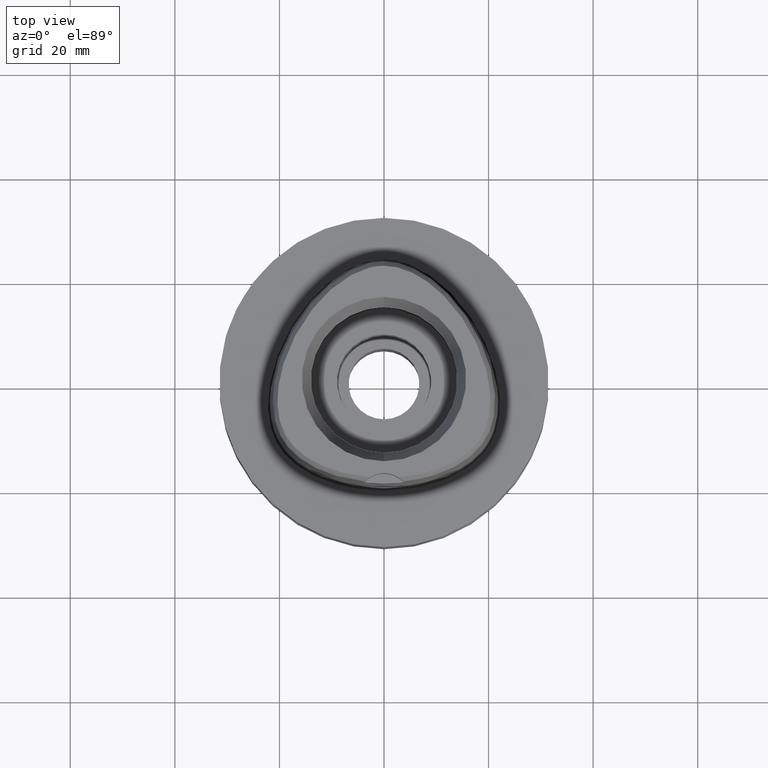
[diagram: clean part render]
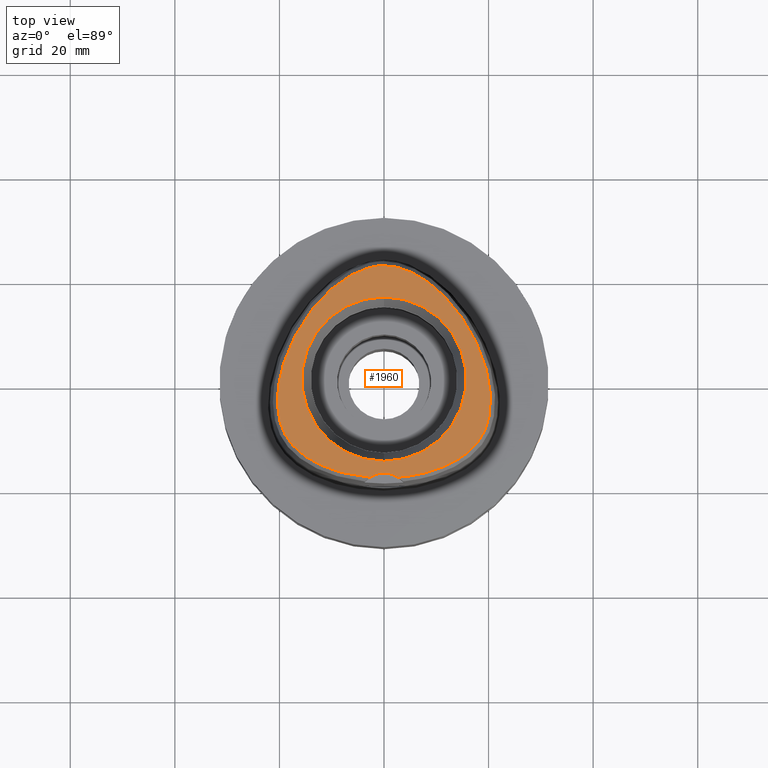
[diagram: same view with one face highlighted and labeled with its STEP entity id]
A machine part, top view. The second image highlights one B-rep face of the part: STEP entity #1960.
In plain terms, the highlighted planar face has unit normal (0, 0, 1).
Its self-contained STEP definition (entity closure, byte-faithful):
#17=CARTESIAN_POINT('',(0.E0,-2.3E1,3.8E1));
#18=DIRECTION('',(0.E0,0.E0,1.E0));
#19=DIRECTION('',(5.364574965210E-1,8.439273395420E-1,0.E0));
#20=AXIS2_PLACEMENT_3D('',#17,#18,#19);
#26=CARTESIAN_POINT('',(0.E0,-2.3E1,3.8E1));
#27=DIRECTION('',(0.E0,0.E0,1.E0));
#28=DIRECTION('',(0.E0,1.E0,0.E0));
#29=AXIS2_PLACEMENT_3D('',#26,#27,#28);
#34=CARTESIAN_POINT('',(-2.682279906005E0,-1.878035848610E1,3.8E1));
#35=CARTESIAN_POINT('',(-3.542684252615E0,-1.871149542856E1,3.8E1));
#36=CARTESIAN_POINT('',(-5.170900762050E0,-1.851498175062E1,3.8E1));
#37=CARTESIAN_POINT('',(-7.384743339320E0,-1.807555510833E1,3.8E1));
#38=CARTESIAN_POINT('',(-9.236301783595E0,-1.756641540527E1,3.8E1));
#39=CARTESIAN_POINT('',(-1.085956236626E1,-1.700080306317E1,3.8E1));
#40=CARTESIAN_POINT('',(-1.233269681922E1,-1.636948330550E1,3.8E1));
#41=CARTESIAN_POINT('',(-1.367390539554E1,-1.567422530037E1,3.8E1));
#42=CARTESIAN_POINT('',(-1.489775850368E1,-1.491299728992E1,3.8E1));
#43=CARTESIAN_POINT('',(-1.601551275396E1,-1.407582522433E1,3.8E1));
#44=CARTESIAN_POINT('',(-1.697700266821E1,-1.320310694529E1,3.8E1));
#45=CARTESIAN_POINT('',(-1.777861122549E1,-1.231957036430E1,3.8E1));
#46=CARTESIAN_POINT('',(-1.843904442737E1,-1.142943643228E1,3.8E1));
#47=CARTESIAN_POINT('',(-1.898429820691E1,-1.051501724725E1,3.8E1));
#48=CARTESIAN_POINT('',(-1.944540071623E1,-9.525088501950E0,3.8E1));
#49=CARTESIAN_POINT('',(-1.983058892854E1,-8.426345650525E0,3.8E1));
#50=CARTESIAN_POINT('',(-2.013196699494E1,-7.195847311692E0,3.8E1));
#51=CARTESIAN_POINT('',(-2.033103332303E1,-5.827338183120E0,3.8E1));
#52=CARTESIAN_POINT('',(-2.040988868810E1,-4.395969024624E0,3.8E1));
#53=CARTESIAN_POINT('',(-2.037268694022E1,-2.907760486794E0,3.8E1));
#54=CARTESIAN_POINT('',(-2.021598093571E1,-1.338764890676E0,3.8E1));
#55=CARTESIAN_POINT('',(-1.993237140046E1,3.152115768366E-1,3.8E1));
#56=CARTESIAN_POINT('',(-1.949507058968E1,2.123537742689E0,3.8E1));
#57=CARTESIAN_POINT('',(-1.884170218999E1,4.181892070023E0,3.8E1));
#58=CARTESIAN_POINT('',(-1.792369696252E1,6.456800824738E0,3.8E1));
#59=CARTESIAN_POINT('',(-1.678338887765E1,8.749921771021E0,3.8E1));
#60=CARTESIAN_POINT('',(-1.547466348741E1,1.094681242026E1,3.8E1));
#61=CARTESIAN_POINT('',(-1.400561577317E1,1.303181560872E1,3.8E1));
#62=CARTESIAN_POINT('',(-1.249470891774E1,1.485421335933E1,3.8E1));
#63=CARTESIAN_POINT('',(-1.108622198193E1,1.631794580162E1,3.8E1));
#64=CARTESIAN_POINT('',(-9.765674941770E0,1.751518803746E1,3.8E1));
#65=CARTESIAN_POINT('',(-8.483038826251E0,1.852764142548E1,3.8E1));
#66=CARTESIAN_POINT('',(-7.208933178398E0,1.939336301656E1,3.8E1));
#67=CARTESIAN_POINT('',(-5.932895999780E0,2.012450270830E1,3.8E1));
#68=CARTESIAN_POINT('',(-4.655029159068E0,2.072139129841E1,3.8E1));
#69=CARTESIAN_POINT('',(-3.398657390787E0,2.117407849146E1,3.8E1));
#70=CARTESIAN_POINT('',(-2.205929336932E0,2.147805146315E1,3.8E1));
#71=CARTESIAN_POINT('',(-1.082079509466E0,2.165007100264E1,3.8E1));
#72=CARTESIAN_POINT('',(-3.556136655468E-1,2.168728795389E1,3.8E1));
#73=CARTESIAN_POINT('',(-3.470663397188E-11,2.168728795390E1,3.8E1));
#78=CARTESIAN_POINT('',(-3.470663397188E-11,2.168728795390E1,3.8E1));
#79=CARTESIAN_POINT('',(3.550111493189E-1,2.168728795390E1,3.8E1));
#80=CARTESIAN_POINT('',(1.080412194031E0,2.165027697941E1,3.8E1));
#81=CARTESIAN_POINT('',(2.205261383070E0,2.147811165217E1,3.8E1));
#82=CARTESIAN_POINT('',(3.395061354145E0,2.117526292444E1,3.8E1));
#83=CARTESIAN_POINT('',(4.660657625334E0,2.071950309194E1,3.8E1));
#84=CARTESIAN_POINT('',(5.945693680790E0,2.011772579885E1,3.8E1));
#85=CARTESIAN_POINT('',(7.213321398094E0,1.939050300571E1,3.8E1));
#86=CARTESIAN_POINT('',(8.492008870674E0,1.852122455499E1,3.8E1));
#87=CARTESIAN_POINT('',(9.773419634896E0,1.750842668507E1,3.8E1));
#88=CARTESIAN_POINT('',(1.108889118267E1,1.631521441504E1,3.8E1));
#89=CARTESIAN_POINT('',(1.249902606281E1,1.484972084761E1,3.8E1));
#90=CARTESIAN_POINT('',(1.401406822999E1,1.302057529967E1,3.8E1));
#91=CARTESIAN_POINT('',(1.547628277862E1,1.094413290308E1,3.8E1));
#92=CARTESIAN_POINT('',(1.678880293224E1,8.740496658569E0,3.8E1));
#93=CARTESIAN_POINT('',(1.792874015042E1,6.445264108876E0,3.8E1));
#94=CARTESIAN_POINT('',(1.884131802771E1,4.181524983986E0,3.8E1));
#95=CARTESIAN_POINT('',(1.948996768603E1,2.140948145674E0,3.8E1));
#96=CARTESIAN_POINT('',(1.992980756798E1,3.287071680138E-1,3.8E1));
#97=CARTESIAN_POINT('',(2.021520594809E1,-1.332801993494E0,3.8E1));
#98=CARTESIAN_POINT('',(2.037226090686E1,-2.900626554198E0,3.8E1));
#99=CARTESIAN_POINT('',(2.041003910769E1,-4.393793915992E0,3.8E1));
#100=CARTESIAN_POINT('',(2.033111580438E1,-5.824959066339E0,3.8E1));
#101=CARTESIAN_POINT('',(2.013346253360E1,-7.187554328402E0,3.8E1));
#102=CARTESIAN_POINT('',(1.983257474133E1,-8.420100027078E0,3.8E1));
#103=CARTESIAN_POINT('',(1.944668054625E1,-9.521959439703E0,3.8E1));
#104=CARTESIAN_POINT('',(1.898723496113E1,-1.050898924808E1,3.8E1));
#105=CARTESIAN_POINT('',(1.844540987974E1,-1.141994276894E1,3.8E1));
#106=CARTESIAN_POINT('',(1.778389711246E1,-1.231311456817E1,3.8E1));
#107=CARTESIAN_POINT('',(1.698636470830E1,-1.319364591376E1,3.8E1));
#108=CARTESIAN_POINT('',(1.602459720028E1,-1.406845743185E1,3.8E1));
#109=CARTESIAN_POINT('',(1.490618249475E1,-1.490736703055E1,3.8E1));
#110=CARTESIAN_POINT('',(1.367969566962E1,-1.567095746313E1,3.8E1));
#111=CARTESIAN_POINT('',(1.234020074452E1,-1.636597562599E1,3.8E1));
#112=CARTESIAN_POINT('',(1.086563537327E1,-1.699835200640E1,3.8E1));
#113=CARTESIAN_POINT('',(9.250376542070E0,-1.756198888583E1,3.8E1));
#114=CARTESIAN_POINT('',(7.394145300401E0,-1.807351287355E1,3.8E1));
#115=CARTESIAN_POINT('',(5.176088667564E0,-1.851426691558E1,3.8E1));
#116=CARTESIAN_POINT('',(3.544468760772E0,-1.871134770984E1,3.8E1));
#117=CARTESIAN_POINT('',(2.682287482607E0,-1.878036330229E1,3.8E1));
#122=CARTESIAN_POINT('',(0.E0,0.E0,3.8E1));
#123=DIRECTION('',(0.E0,0.E0,1.E0));
#124=DIRECTION('',(0.E0,1.E0,0.E0));
#125=AXIS2_PLACEMENT_3D('',#122,#123,#124);
#130=CARTESIAN_POINT('',(0.E0,0.E0,3.8E1));
#131=DIRECTION('',(0.E0,0.E0,1.E0));
#132=DIRECTION('',(0.E0,-1.E0,0.E0));
#133=AXIS2_PLACEMENT_3D('',#130,#131,#132);
#1728=CARTESIAN_POINT('',(0.E0,-1.8E1,3.8E1));
#1729=CARTESIAN_POINT('',(-2.682279906007E0,-1.878035848610E1,3.8E1));
#1730=VERTEX_POINT('',#1728);
#1731=VERTEX_POINT('',#1729);
#1732=CARTESIAN_POINT('',(2.682287482605E0,-1.878036330229E1,3.8E1));
#1733=VERTEX_POINT('',#1732);
#1734=VERTEX_POINT('',#73);
#1735=CARTESIAN_POINT('',(0.E0,1.571487483156E1,3.8E1));
#1736=CARTESIAN_POINT('',(0.E0,-1.571487483156E1,3.8E1));
#1737=VERTEX_POINT('',#1735);
#1738=VERTEX_POINT('',#1736);
#1939=CARTESIAN_POINT('',(0.E0,0.E0,3.8E1));
#1940=DIRECTION('',(0.E0,0.E0,1.E0));
#1941=DIRECTION('',(0.E0,1.E0,0.E0));
#1942=AXIS2_PLACEMENT_3D('',#1939,#1940,#1941);
#1943=PLANE('',#1942);
#1945=ORIENTED_EDGE('',*,*,#1944,.T.);
#1947=ORIENTED_EDGE('',*,*,#1946,.T.);
#1949=ORIENTED_EDGE('',*,*,#1948,.T.);
#1951=ORIENTED_EDGE('',*,*,#1950,.T.);
#1952=EDGE_LOOP('',(#1945,#1947,#1949,#1951));
#1953=FACE_OUTER_BOUND('',#1952,.F.);
#1955=ORIENTED_EDGE('',*,*,#1954,.T.);
#1957=ORIENTED_EDGE('',*,*,#1956,.T.);
#1958=EDGE_LOOP('',(#1955,#1957));
#1959=FACE_BOUND('',#1958,.F.);
#21=CIRCLE('',#20,5.E0);
#30=CIRCLE('',#29,5.E0);
#74=B_SPLINE_CURVE_WITH_KNOTS('',3,(#34,#35,#36,#37,#38,#39,#40,#41,#42,#43,#44,
#45,#46,#47,#48,#49,#50,#51,#52,#53,#54,#55,#56,#57,#58,#59,#60,#61,#62,#63,#64,
#65,#66,#67,#68,#69,#70,#71,#72,#73),.UNSPECIFIED.,.F.,.F.,(4,1,1,1,1,1,1,1,1,1,
1,1,1,1,1,1,1,1,1,1,1,1,1,1,1,1,1,1,1,1,1,1,1,1,1,1,1,4),(0.E0,
2.702702702703E-2,5.405405405405E-2,8.108108108108E-2,1.081081081081E-1,
1.351351351351E-1,1.621621621622E-1,1.891891891892E-1,2.162162162162E-1,
2.432432432432E-1,2.702702702703E-1,2.972972972973E-1,3.243243243243E-1,
3.513513513514E-1,3.783783783784E-1,4.054054054054E-1,4.324324324324E-1,
4.594594594595E-1,4.864864864865E-1,5.135135135135E-1,5.405405405405E-1,
5.675675675676E-1,5.945945945946E-1,6.216216216216E-1,6.486486486486E-1,
6.756756756757E-1,7.027027027027E-1,7.297297297297E-1,7.567567567568E-1,
7.837837837838E-1,8.108108108108E-1,8.378378378378E-1,8.648648648649E-1,
8.918918918919E-1,9.189189189189E-1,9.459459459459E-1,9.729729729730E-1,1.E0),
.UNSPECIFIED.);
#118=B_SPLINE_CURVE_WITH_KNOTS('',3,(#78,#79,#80,#81,#82,#83,#84,#85,#86,#87,
#88,#89,#90,#91,#92,#93,#94,#95,#96,#97,#98,#99,#100,#101,#102,#103,#104,#105,
#106,#107,#108,#109,#110,#111,#112,#113,#114,#115,#116,#117),.UNSPECIFIED.,.F.,
.F.,(4,1,1,1,1,1,1,1,1,1,1,1,1,1,1,1,1,1,1,1,1,1,1,1,1,1,1,1,1,1,1,1,1,1,1,1,1,
4),(0.E0,2.702702702703E-2,5.405405405405E-2,8.108108108108E-2,
1.081081081081E-1,1.351351351351E-1,1.621621621622E-1,1.891891891892E-1,
2.162162162162E-1,2.432432432432E-1,2.702702702703E-1,2.972972972973E-1,
3.243243243243E-1,3.513513513514E-1,3.783783783784E-1,4.054054054054E-1,
4.324324324324E-1,4.594594594595E-1,4.864864864865E-1,5.135135135135E-1,
5.405405405405E-1,5.675675675676E-1,5.945945945946E-1,6.216216216216E-1,
6.486486486486E-1,6.756756756757E-1,7.027027027027E-1,7.297297297297E-1,
7.567567567568E-1,7.837837837838E-1,8.108108108108E-1,8.378378378378E-1,
8.648648648649E-1,8.918918918919E-1,9.189189189189E-1,9.459459459459E-1,
9.729729729730E-1,1.E0),.UNSPECIFIED.);
#126=CIRCLE('',#125,1.571487483156E1);
#134=CIRCLE('',#133,1.571487483156E1);
#1944=EDGE_CURVE('',#1733,#1730,#21,.T.);
#1946=EDGE_CURVE('',#1730,#1731,#30,.T.);
#1948=EDGE_CURVE('',#1731,#1734,#74,.T.);
#1950=EDGE_CURVE('',#1734,#1733,#118,.T.);
#1954=EDGE_CURVE('',#1737,#1738,#126,.T.);
#1956=EDGE_CURVE('',#1738,#1737,#134,.T.);
#1960=ADVANCED_FACE('',(#1953,#1959),#1943,.T.);